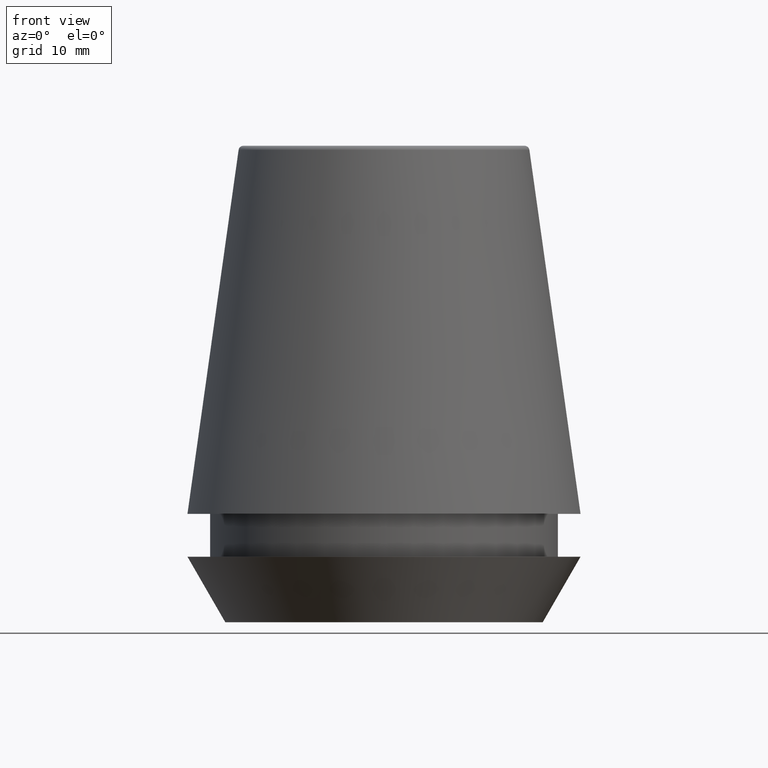
[diagram: clean part render]
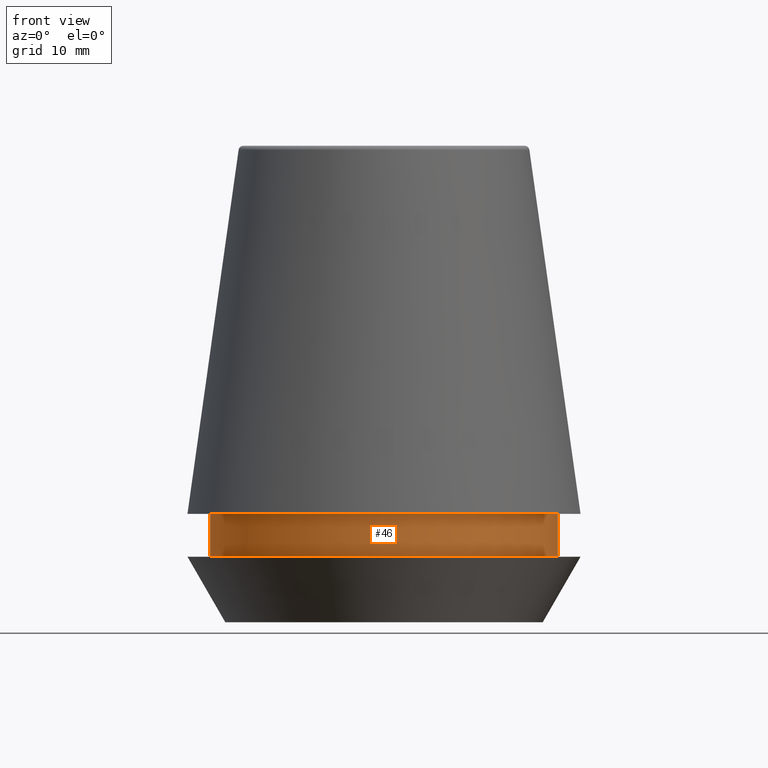
[diagram: same view with one face highlighted and labeled with its STEP entity id]
A machine part, front view. The second image highlights one B-rep face of the part: STEP entity #46.
In plain terms, the highlighted cylindrical surface (partial cylindrical patch) has radius 14.6 mm, axis along (-0, -0, 1).
Its self-contained STEP definition (entity closure, byte-faithful):
#10 = CIRCLE ( 'NONE', #76, 14.60000000000000000 ) ;
#14 = VECTOR ( 'NONE', #386, 1000.000000000000000 ) ;
#19 = CARTESIAN_POINT ( 'NONE',  ( 0.0000000000000000000, 0.0000000000000000000, 5.500000000000005300 ) ) ;
#20 = EDGE_CURVE ( 'NONE', #257, #121, #95, .T. ) ;
#46 = ADVANCED_FACE ( 'NONE', ( #336 ), #251, .T. ) ;
#76 = AXIS2_PLACEMENT_3D ( 'NONE', #19, #348, #237 ) ;
#81 = CARTESIAN_POINT ( 'NONE',  ( -14.60000000000000000, 1.787984326755135800E-015, 101.8074564848000400 ) ) ;
#94 = CARTESIAN_POINT ( 'NONE',  ( 14.60000000000000000, 0.0000000000000000000, 9.099999999999997900 ) ) ;
#95 = CIRCLE ( 'NONE', #331, 14.60000000000000000 ) ;
#121 = VERTEX_POINT ( 'NONE', #94 ) ;
#126 = DIRECTION ( 'NONE',  ( 1.000000000000000000, 0.0000000000000000000, 0.0000000000000000000 ) ) ;
#131 = ORIENTED_EDGE ( 'NONE', *, *, #367, .T. ) ;
#133 = EDGE_LOOP ( 'NONE', ( #303, #318, #131, #134 ) ) ;
#134 = ORIENTED_EDGE ( 'NONE', *, *, #20, .F. ) ;
#139 = EDGE_CURVE ( 'NONE', #211, #199, #10, .T. ) ;
#149 = CARTESIAN_POINT ( 'NONE',  ( 0.0000000000000000000, 0.0000000000000000000, 101.8074564848000400 ) ) ;
#170 = VECTOR ( 'NONE', #387, 1000.000000000000000 ) ;
#172 = CARTESIAN_POINT ( 'NONE',  ( 14.60000000000000000, 0.0000000000000000000, 101.8074564848000400 ) ) ;
#190 = DIRECTION ( 'NONE',  ( -0.0000000000000000000, -0.0000000000000000000, 1.000000000000000000 ) ) ;
#199 = VERTEX_POINT ( 'NONE', #204 ) ;
#204 = CARTESIAN_POINT ( 'NONE',  ( 14.60000000000000000, 0.0000000000000000000, 5.500000000000005300 ) ) ;
#211 = VERTEX_POINT ( 'NONE', #359 ) ;
#224 = AXIS2_PLACEMENT_3D ( 'NONE', #149, #190, #126 ) ;
#237 = DIRECTION ( 'NONE',  ( 1.000000000000000000, 0.0000000000000000000, 0.0000000000000000000 ) ) ;
#251 = CYLINDRICAL_SURFACE ( 'NONE', #224, 14.60000000000000000 ) ;
#256 = LINE ( 'NONE', #81, #14 ) ;
#257 = VERTEX_POINT ( 'NONE', #353 ) ;
#290 = DIRECTION ( 'NONE',  ( -0.0000000000000000000, -0.0000000000000000000, 1.000000000000000000 ) ) ;
#303 = ORIENTED_EDGE ( 'NONE', *, *, #370, .F. ) ;
#318 = ORIENTED_EDGE ( 'NONE', *, *, #139, .T. ) ;
#331 = AXIS2_PLACEMENT_3D ( 'NONE', #368, #290, #338 ) ;
#336 = FACE_OUTER_BOUND ( 'NONE', #133, .T. ) ;
#338 = DIRECTION ( 'NONE',  ( 1.000000000000000000, 0.0000000000000000000, 0.0000000000000000000 ) ) ;
#339 = LINE ( 'NONE', #172, #170 ) ;
#348 = DIRECTION ( 'NONE',  ( -0.0000000000000000000, -0.0000000000000000000, 1.000000000000000000 ) ) ;
#353 = CARTESIAN_POINT ( 'NONE',  ( -14.60000000000000000, 1.787984326755135800E-015, 9.099999999999997900 ) ) ;
#359 = CARTESIAN_POINT ( 'NONE',  ( -14.60000000000000000, 1.787984326755135800E-015, 5.500000000000005300 ) ) ;
#367 = EDGE_CURVE ( 'NONE', #199, #121, #339, .T. ) ;
#368 = CARTESIAN_POINT ( 'NONE',  ( 0.0000000000000000000, 0.0000000000000000000, 9.099999999999997900 ) ) ;
#370 = EDGE_CURVE ( 'NONE', #211, #257, #256, .T. ) ;
#386 = DIRECTION ( 'NONE',  ( -0.0000000000000000000, -0.0000000000000000000, 1.000000000000000000 ) ) ;
#387 = DIRECTION ( 'NONE',  ( -0.0000000000000000000, -0.0000000000000000000, 1.000000000000000000 ) ) ;